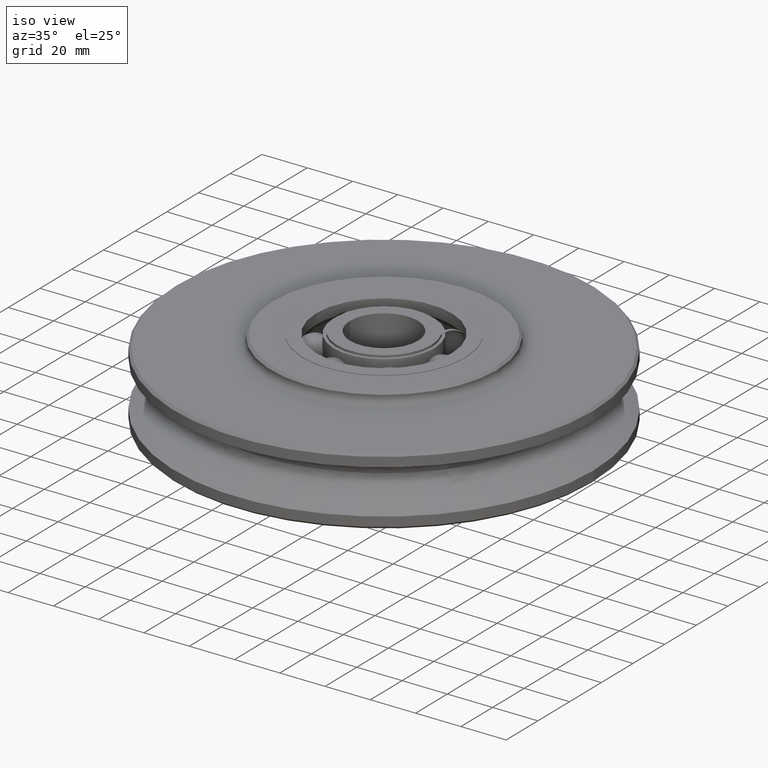
[diagram: clean part render]
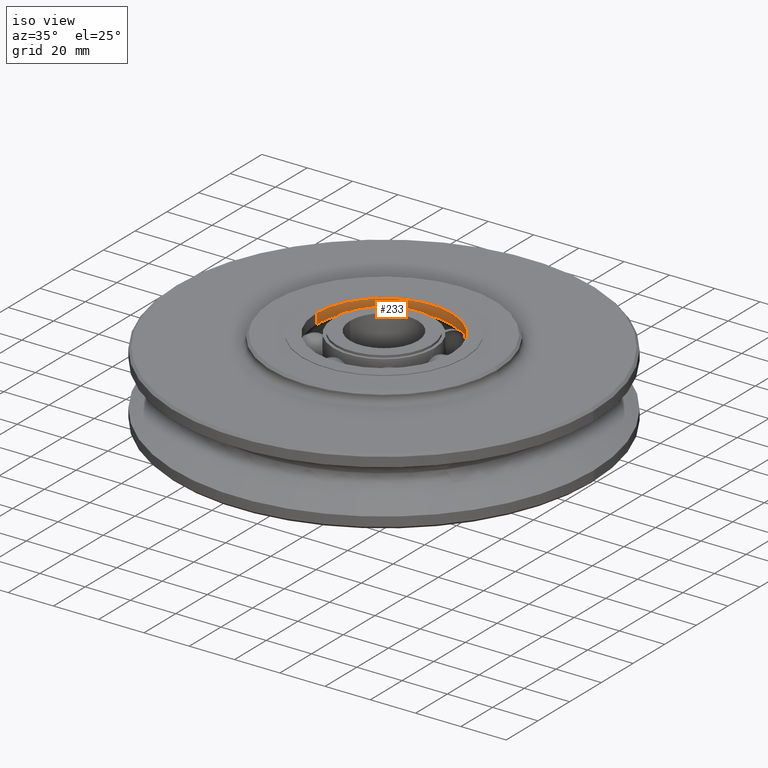
[diagram: same view with one face highlighted and labeled with its STEP entity id]
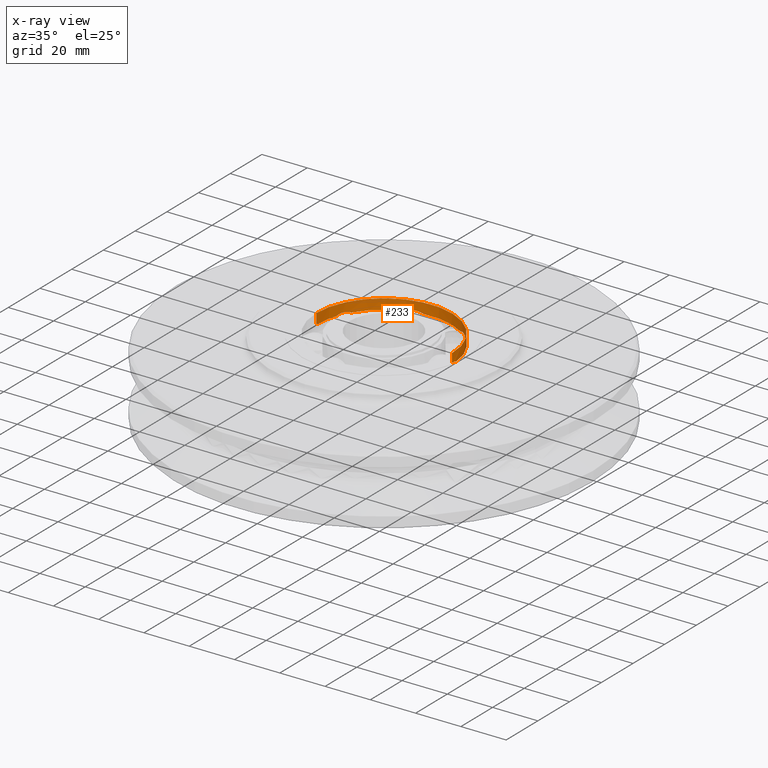
[diagram: x-ray of the same camera — body ghosted, the highlighted face saturated]
A machine part, iso view. The second image highlights one B-rep face of the part: STEP entity #233.
The next image is the same camera in x-ray: the body ghosted, the highlighted face saturated — about 0% of this face is hidden behind the body in this view.
In plain terms, the highlighted cylindrical surface (partial cylindrical patch) has radius 29.95 mm, axis along (0, 0, 1).
Its self-contained STEP definition (entity closure, byte-faithful):
#233=ADVANCED_FACE('',(#547),#548,.F.);
#547=FACE_OUTER_BOUND('',#965,.T.);
#548=CYLINDRICAL_SURFACE('',#966,29.95);
#965=EDGE_LOOP('',(#1617,#1618,#1619,#1620,#1621,#1622,#1623,#1624,#1625,#1626,#1627,#1628,#1629,#1630));
#966=AXIS2_PLACEMENT_3D('',#1631,#1632,#1633);
#1617=ORIENTED_EDGE('',*,*,#2774,.F.);
#1618=ORIENTED_EDGE('',*,*,#2775,.F.);
#1619=ORIENTED_EDGE('',*,*,#2776,.F.);
#1620=ORIENTED_EDGE('',*,*,#2753,.T.);
#1621=ORIENTED_EDGE('',*,*,#2749,.T.);
#1622=ORIENTED_EDGE('',*,*,#2777,.T.);
#1623=ORIENTED_EDGE('',*,*,#2778,.T.);
#1624=ORIENTED_EDGE('',*,*,#2738,.T.);
#1625=ORIENTED_EDGE('',*,*,#2779,.T.);
#1626=ORIENTED_EDGE('',*,*,#2780,.T.);
#1627=ORIENTED_EDGE('',*,*,#2730,.T.);
#1628=ORIENTED_EDGE('',*,*,#2781,.T.);
#1629=ORIENTED_EDGE('',*,*,#2782,.T.);
#1630=ORIENTED_EDGE('',*,*,#2711,.T.);
#1631=CARTESIAN_POINT('',(0.0,0.0,10.75));
#1632=DIRECTION('',(0.0,0.0,1.0));
#1633=DIRECTION('',(1.0,0.0,0.0));
#2711=EDGE_CURVE('',#3336,#3333,#3337,.T.);
#2730=EDGE_CURVE('',#3367,#3364,#3368,.T.);
#2738=EDGE_CURVE('',#3381,#3378,#3382,.T.);
#2749=EDGE_CURVE('',#3401,#3399,#3402,.T.);
#2753=EDGE_CURVE('',#3406,#3401,#3407,.T.);
#2774=EDGE_CURVE('',#3442,#3333,#3443,.T.);
#2775=EDGE_CURVE('',#3444,#3442,#3445,.T.);
#2776=EDGE_CURVE('',#3406,#3444,#3446,.T.);
#2777=EDGE_CURVE('',#3399,#3447,#3448,.T.);
#2778=EDGE_CURVE('',#3447,#3381,#3449,.T.);
#2779=EDGE_CURVE('',#3378,#3450,#3451,.T.);
#2780=EDGE_CURVE('',#3450,#3367,#3452,.T.);
#2781=EDGE_CURVE('',#3364,#3453,#3454,.T.);
#2782=EDGE_CURVE('',#3453,#3336,#3455,.T.);
#3333=VERTEX_POINT('',#5210);
#3336=VERTEX_POINT('',#5213);
#3337=B_SPLINE_CURVE_WITH_KNOTS('',3,(#5214,#5215,#5216,#5217,#5218,#5219,#5220,#5221,#5222,#5223,#5224,#5225,#5226,#5227),.UNSPECIFIED.,.F.,.F.,(4,2,2,2,2,2,4),(1.1726045850268,2.3452091700536,3.5178137550804,4.6904183401072,5.863022925134,7.0356275101608,8.2082320951876),.UNSPECIFIED.);
#3364=VERTEX_POINT('',#5418);
#3367=VERTEX_POINT('',#5421);
#3368=B_SPLINE_CURVE_WITH_KNOTS('',3,(#5422,#5423,#5424,#5425,#5426,#5427,#5428,#5429,#5430,#5431,#5432,#5433,#5434,#5435),.UNSPECIFIED.,.F.,.F.,(4,2,2,2,2,2,4),(1.17267713642103,2.34535427284206,3.51803140926309,4.69070854568412,5.86338568210515,7.03606281852618,8.20873995494721),.UNSPECIFIED.);
#3378=VERTEX_POINT('',#5516);
#3381=VERTEX_POINT('',#5519);
#3382=B_SPLINE_CURVE_WITH_KNOTS('',3,(#5520,#5521,#5522,#5523,#5524,#5525,#5526,#5527,#5528,#5529,#5530,#5531,#5532,#5533),.UNSPECIFIED.,.F.,.F.,(4,2,2,2,2,2,4),(1.17267714109701,2.34535428219402,3.51803142329103,4.69070856438804,5.86338570548505,7.03606284658205,8.20873998767906),.UNSPECIFIED.);
#3399=VERTEX_POINT('',#5654);
#3401=VERTEX_POINT('',#5656);
#3402=B_SPLINE_CURVE_WITH_KNOTS('',3,(#5657,#5658,#5659,#5660,#5661,#5662,#5663,#5664,#5665,#5666,#5667,#5668,#5669,#5670),.UNSPECIFIED.,.F.,.F.,(4,2,2,2,2,2,4),(1.17267714109731,2.34535428219462,3.51803142329194,4.69070856438925,5.86338570548656,7.03606284658387,8.20873998768118),.UNSPECIFIED.);
#3406=VERTEX_POINT('',#5712);
#3407=CIRCLE('',#5713,29.95);
#3442=VERTEX_POINT('',#5942);
#3443=LINE('',#5943,#5944);
#3444=VERTEX_POINT('',#5945);
#3445=CIRCLE('',#5946,29.95);
#3446=LINE('',#5947,#5948);
#3447=VERTEX_POINT('',#5949);
#3448=B_SPLINE_CURVE_WITH_KNOTS('',3,(#5950,#5951,#5952,#5953,#5954,#5955,#5956,#5957,#5958,#5959,#5960,#5961,#5962,#5963),.UNSPECIFIED.,.F.,.F.,(4,2,2,2,2,2,4),(1.17267714109731,2.34535428219462,3.51803142329194,4.69070856438925,5.86338570548656,7.03606284658387,8.20873998768118),.UNSPECIFIED.);
#3449=CIRCLE('',#5964,29.95);
#3450=VERTEX_POINT('',#5965);
#3451=B_SPLINE_CURVE_WITH_KNOTS('',3,(#5966,#5967,#5968,#5969,#5970,#5971,#5972,#5973,#5974,#5975,#5976,#5977,#5978,#5979),.UNSPECIFIED.,.F.,.F.,(4,2,2,2,2,2,4),(1.17267714109701,2.34535428219402,3.51803142329103,4.69070856438804,5.86338570548505,7.03606284658205,8.20873998767906),.UNSPECIFIED.);
#3452=CIRCLE('',#5980,29.95);
#3453=VERTEX_POINT('',#5981);
#3454=B_SPLINE_CURVE_WITH_KNOTS('',3,(#5982,#5983,#5984,#5985,#5986,#5987,#5988,#5989,#5990,#5991,#5992,#5993,#5994,#5995),.UNSPECIFIED.,.F.,.F.,(4,2,2,2,2,2,4),(1.17267713642103,2.34535427284206,3.51803140926309,4.69070854568412,5.86338568210515,7.03606281852618,8.20873995494721),.UNSPECIFIED.);
#3455=CIRCLE('',#5996,29.95);
#5210=CARTESIAN_POINT('',(29.95,-1.83390858172316E-015,16.4355870409308));
#5213=CARTESIAN_POINT('',(29.7949823529412,3.04327563456284,15.6916596402423));
#5214=CARTESIAN_POINT('',(29.7459530256709,3.49009721849947,15.4318270268366));
#5215=CARTESIAN_POINT('',(29.7862259235283,3.14685299226772,15.6511770542599));
#5216=CARTESIAN_POINT('',(29.8235765456763,2.77610014423096,15.8392950010862));
#5217=CARTESIAN_POINT('',(29.8853817382335,2.00409866443188,16.1400821253849));
#5218=CARTESIAN_POINT('',(29.9098324542799,1.60229192571737,16.2529822833948));
#5219=CARTESIAN_POINT('',(29.9421493960689,0.795679839236256,16.400750219027));
#5220=CARTESIAN_POINT('',(29.95,0.390868195008933,16.4355870409308));
#5221=CARTESIAN_POINT('',(29.95,-0.390868195008933,16.4355870409308));
#5222=CARTESIAN_POINT('',(29.9421493960689,-0.795679839236255,16.400750219027));
#5223=CARTESIAN_POINT('',(29.9098324542799,-1.60229192571737,16.2529822833948));
#5224=CARTESIAN_POINT('',(29.8853817382335,-2.00409866443188,16.1400821253849));
#5225=CARTESIAN_POINT('',(29.8235765456763,-2.77610014423096,15.8392950010862));
#5226=CARTESIAN_POINT('',(29.7862259235283,-3.14685299226772,15.6511770542599));
#5227=CARTESIAN_POINT('',(29.7459530256709,-3.49009721849947,15.4318270268366));
#5418=CARTESIAN_POINT('',(18.6735195659578,23.4158528996872,16.4355870409308));
#5421=CARTESIAN_POINT('',(16.1975389430013,25.1921065453042,15.6916596402423));
#5422=CARTESIAN_POINT('',(15.8174753320387,25.4324590655396,15.4317110619226));
#5423=CARTESIAN_POINT('',(16.1109559756108,25.2499315789315,15.6510858857687));
#5424=CARTESIAN_POINT('',(16.4241247812993,25.0479657816203,15.8392252635535));
#5425=CARTESIAN_POINT('',(17.0662680515092,24.614933730029,16.140047016045));
#5426=CARTESIAN_POINT('',(17.3956765226473,24.3835164346977,16.252960417913));
#5427=CARTESIAN_POINT('',(18.0464987052913,23.9058427980784,16.4007459131969));
#5428=CARTESIAN_POINT('',(18.3679075979527,23.6595703115015,16.4355870409308));
#5429=CARTESIAN_POINT('',(18.9791315339629,23.172135487873,16.4355870409308));
#5430=CARTESIAN_POINT('',(19.2907496620997,22.9135857709071,16.4007459131969));
#5431=CARTESIAN_POINT('',(19.9012685832617,22.3853734429122,16.252960417913));
#5432=CARTESIAN_POINT('',(20.2001840444859,22.115719122574,16.140047016045));
#5433=CARTESIAN_POINT('',(20.7652493986594,21.5860344213657,15.8392252635535));
#5434=CARTESIAN_POINT('',(21.0318381068855,21.3256590293137,15.6510858857687));
#5435=CARTESIAN_POINT('',(21.2750948352198,21.080152744997,15.4317110619226));
#5516=CARTESIAN_POINT('',(-6.66450197311711,29.1990909695887,16.4355870409308));
#5519=CARTESIAN_POINT('',(-9.59698166208011,28.3707674019879,15.6916596402423));
#5520=CARTESIAN_POINT('',(-10.0218626258722,28.2234790468529,15.4317110544484));
#5521=CARTESIAN_POINT('',(-9.69617470140605,28.3391274274485,15.6510858798927));
#5522=CARTESIAN_POINT('',(-9.34301392513351,28.4580490445958,15.8392252590587));
#5523=CARTESIAN_POINT('',(-8.60408605172779,28.6901058024381,16.1400470137821));
#5524=CARTESIAN_POINT('',(-8.21777390094451,28.8033613926553,16.2529604165037));
#5525=CARTESIAN_POINT('',(-7.43853261697383,29.0143700244194,16.4007459129193));
#5526=CARTESIAN_POINT('',(-7.04559386539144,29.1121092320187,16.4355870409308));
#5527=CARTESIAN_POINT('',(-6.28341008084278,29.2860727071588,16.4355870409308));
#5528=CARTESIAN_POINT('',(-5.88697704582941,29.3685024587497,16.4007459129193));
#5529=CARTESIAN_POINT('',(-5.09335169426303,29.5164903726967,16.2529604165037));
#5530=CARTESIAN_POINT('',(-4.69615671416053,29.5820651722741,16.1400470137821));
#5531=CARTESIAN_POINT('',(-3.9297200508251,29.6935980465824,15.8392252590587));
#5532=CARTESIAN_POINT('',(-3.55993503013308,29.7396840899594,15.6510858798927));
#5533=CARTESIAN_POINT('',(-3.21632239774445,29.7767991938987,15.4317110544484));
#5654=CARTESIAN_POINT('',(-26.9840175938694,12.9948179861723,16.4355870409308));
#5656=CARTESIAN_POINT('',(-28.1647793313419,10.1856617466327,15.6916596402423));
#5657=CARTESIAN_POINT('',(-28.3145336062351,9.76164364548228,15.4317110544479));
#5658=CARTESIAN_POINT('',(-28.2018880515802,10.0883823041898,15.6510858798923));
#5659=CARTESIAN_POINT('',(-28.0746725733811,10.4386409329615,15.8392252590585));
#5660=CARTESIAN_POINT('',(-27.7953878589869,11.1610430296238,16.140047013782));
#5661=CARTESIAN_POINT('',(-27.6430729586278,11.5336877366665,16.2529604165036));
#5662=CARTESIAN_POINT('',(-27.3221971562528,12.2744848349152,16.4007459129193));
#5663=CARTESIAN_POINT('',(-27.1536194414498,12.64263612076,16.4355870409308));
#5664=CARTESIAN_POINT('',(-26.8144157462889,13.3469998515847,16.4355870409308));
#5665=CARTESIAN_POINT('',(-26.6316899667153,13.7083377885309,16.4007459129193));
#5666=CARTESIAN_POINT('',(-26.2525742636486,14.4210880288057,16.2529604165036));
#5667=CARTESIAN_POINT('',(-26.056195686963,14.772512787719,16.140047013782));
#5668=CARTESIAN_POINT('',(-25.665530156051,15.4412767101263,15.8392252590585));
#5669=CARTESIAN_POINT('',(-25.4710044863764,15.7591204590975,15.6510858798923));
#5670=CARTESIAN_POINT('',(-25.2857832710201,16.0509085216694,15.4317110544479));
#5712=CARTESIAN_POINT('',(-29.95,3.66781716344632E-015,15.6916596402423));
#5713=AXIS2_PLACEMENT_3D('',#8783,#8784,#8785);
#5942=CARTESIAN_POINT('',(29.95,0.0,20.25));
#5943=CARTESIAN_POINT('',(29.95,-3.66781716344632E-015,17.9707301382943));
#5944=VECTOR('',#8813,1.0);
#5945=CARTESIAN_POINT('',(-29.95,3.66781716344632E-015,20.25));
#5946=AXIS2_PLACEMENT_3D('',#8814,#8815,#8816);
#5947=CARTESIAN_POINT('',(-29.95,3.66781716344632E-015,17.9707301382943));
#5948=VECTOR('',#8817,1.0);
#5949=CARTESIAN_POINT('',(-25.5239237084439,15.6694549530459,15.6916596402423));
#5950=CARTESIAN_POINT('',(-28.3145336062351,9.76164364548228,15.4317110544479));
#5951=CARTESIAN_POINT('',(-28.2018880515802,10.0883823041898,15.6510858798923));
#5952=CARTESIAN_POINT('',(-28.0746725733811,10.4386409329615,15.8392252590585));
#5953=CARTESIAN_POINT('',(-27.7953878589869,11.1610430296238,16.140047013782));
#5954=CARTESIAN_POINT('',(-27.6430729586278,11.5336877366665,16.2529604165036));
#5955=CARTESIAN_POINT('',(-27.3221971562528,12.2744848349152,16.4007459129193));
#5956=CARTESIAN_POINT('',(-27.1536194414498,12.64263612076,16.4355870409308));
#5957=CARTESIAN_POINT('',(-26.8144157462889,13.3469998515847,16.4355870409308));
#5958=CARTESIAN_POINT('',(-26.6316899667153,13.7083377885309,16.4007459129193));
#5959=CARTESIAN_POINT('',(-26.2525742636486,14.4210880288057,16.2529604165036));
#5960=CARTESIAN_POINT('',(-26.056195686963,14.772512787719,16.140047013782));
#5961=CARTESIAN_POINT('',(-25.665530156051,15.4412767101263,15.8392252590585));
#5962=CARTESIAN_POINT('',(-25.4710044863764,15.7591204590975,15.6510858798923));
#5963=CARTESIAN_POINT('',(-25.2857832710201,16.0509085216694,15.4317110544479));
#5964=AXIS2_PLACEMENT_3D('',#8818,#8819,#8820);
#5965=CARTESIAN_POINT('',(-3.66303294093599,29.7251524751954,15.6916596402423));
#5966=CARTESIAN_POINT('',(-10.0218626258722,28.2234790468529,15.4317110544484));
#5967=CARTESIAN_POINT('',(-9.69617470140605,28.3391274274485,15.6510858798927));
#5968=CARTESIAN_POINT('',(-9.34301392513351,28.4580490445958,15.8392252590587));
#5969=CARTESIAN_POINT('',(-8.60408605172779,28.6901058024381,16.1400470137821));
#5970=CARTESIAN_POINT('',(-8.21777390094451,28.8033613926553,16.2529604165037));
#5971=CARTESIAN_POINT('',(-7.43853261697383,29.0143700244194,16.4007459129193));
#5972=CARTESIAN_POINT('',(-7.04559386539144,29.1121092320187,16.4355870409308));
#5973=CARTESIAN_POINT('',(-6.28341008084278,29.2860727071588,16.4355870409308));
#5974=CARTESIAN_POINT('',(-5.88697704582941,29.3685024587497,16.4007459129193));
#5975=CARTESIAN_POINT('',(-5.09335169426303,29.5164903726967,16.2529604165037));
#5976=CARTESIAN_POINT('',(-4.69615671416053,29.5820651722741,16.1400470137821));
#5977=CARTESIAN_POINT('',(-3.9297200508251,29.6935980465824,15.8392252590587));
#5978=CARTESIAN_POINT('',(-3.55993503013308,29.7396840899594,15.6510858798927));
#5979=CARTESIAN_POINT('',(-3.21632239774445,29.7767991938987,15.4317110544484));
#5980=AXIS2_PLACEMENT_3D('',#8821,#8822,#8823);
#5981=CARTESIAN_POINT('',(20.9561963448127,21.3972039004553,15.6916596402423));
#5982=CARTESIAN_POINT('',(15.8174753320387,25.4324590655396,15.4317110619226));
#5983=CARTESIAN_POINT('',(16.1109559756108,25.2499315789315,15.6510858857687));
#5984=CARTESIAN_POINT('',(16.4241247812993,25.0479657816203,15.8392252635535));
#5985=CARTESIAN_POINT('',(17.0662680515092,24.614933730029,16.140047016045));
#5986=CARTESIAN_POINT('',(17.3956765226473,24.3835164346977,16.252960417913));
#5987=CARTESIAN_POINT('',(18.0464987052913,23.9058427980784,16.4007459131969));
#5988=CARTESIAN_POINT('',(18.3679075979527,23.6595703115015,16.4355870409308));
#5989=CARTESIAN_POINT('',(18.9791315339629,23.172135487873,16.4355870409308));
#5990=CARTESIAN_POINT('',(19.2907496620997,22.9135857709071,16.4007459131969));
#5991=CARTESIAN_POINT('',(19.9012685832617,22.3853734429122,16.252960417913));
#5992=CARTESIAN_POINT('',(20.2001840444859,22.115719122574,16.140047016045));
#5993=CARTESIAN_POINT('',(20.7652493986594,21.5860344213657,15.8392252635535));
#5994=CARTESIAN_POINT('',(21.0318381068855,21.3256590293137,15.6510858857687));
#5995=CARTESIAN_POINT('',(21.2750948352198,21.080152744997,15.4317110619226));
#5996=AXIS2_PLACEMENT_3D('',#8824,#8825,#8826);
#8783=CARTESIAN_POINT('',(0.0,0.0,15.6916596402423));
#8784=DIRECTION('',(0.0,0.0,-1.0));
#8785=DIRECTION('',(1.0,0.0,0.0));
#8813=DIRECTION('',(-0.0,0.0,-1.0));
#8814=CARTESIAN_POINT('',(0.0,0.0,20.25));
#8815=DIRECTION('',(0.0,0.0,-1.0));
#8816=DIRECTION('',(1.0,0.0,0.0));
#8817=DIRECTION('',(-0.0,0.0,1.0));
#8818=CARTESIAN_POINT('',(0.0,0.0,15.6916596402423));
#8819=DIRECTION('',(0.0,0.0,-1.0));
#8820=DIRECTION('',(1.0,0.0,0.0));
#8821=CARTESIAN_POINT('',(0.0,0.0,15.6916596402423));
#8822=DIRECTION('',(0.0,0.0,-1.0));
#8823=DIRECTION('',(1.0,0.0,0.0));
#8824=CARTESIAN_POINT('',(0.0,0.0,15.6916596402423));
#8825=DIRECTION('',(0.0,0.0,-1.0));
#8826=DIRECTION('',(1.0,0.0,0.0));